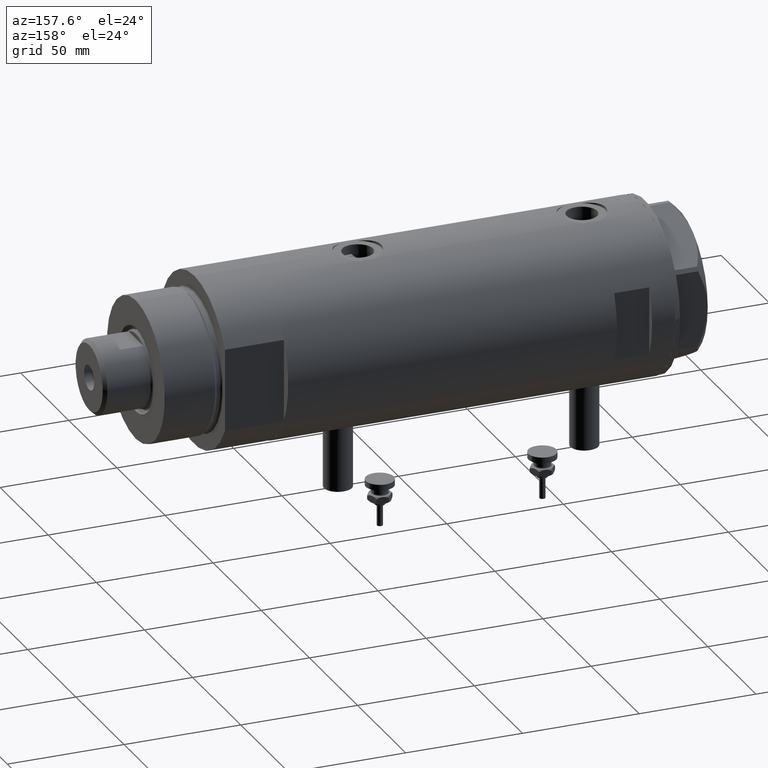
[diagram: clean part render]
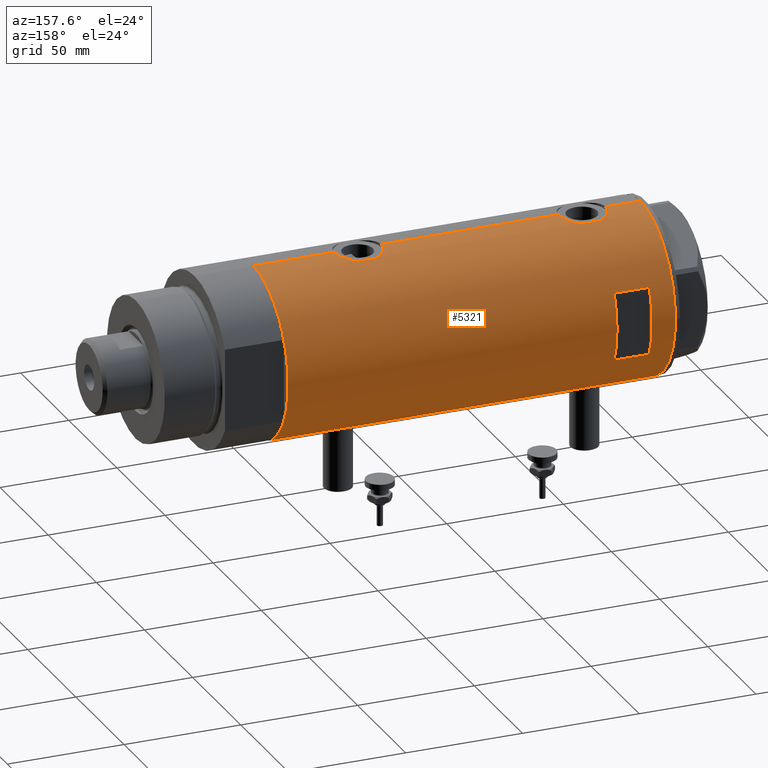
[diagram: same view with one face highlighted and labeled with its STEP entity id]
A machine part, auxiliary view. The second image highlights one B-rep face of the part: STEP entity #5321.
In plain terms, the highlighted cylindrical surface (partial cylindrical patch) has radius 36.5 mm, axis along (-1, -0, 0).
Its self-contained STEP definition (entity closure, byte-faithful):
#26 = CARTESIAN_POINT ( 'NONE',  ( -35.96094343308264740, 6.249843792257639308, -46.18912889655430121 ) ) ;
#29 = CARTESIAN_POINT ( 'NONE',  ( 36.44688397185922213, 1.983417953489136965, 67.70449957648254724 ) ) ;
#90 = FACE_OUTER_BOUND ( 'NONE', #4824, .T. ) ;
#93 = CARTESIAN_POINT ( 'NONE',  ( -36.36688032967139605, 3.133094607697487266, -41.17663567362491506 ) ) ;
#108 = DIRECTION ( 'NONE',  ( 0.000000000000000000, 0.000000000000000000, 1.000000000000000000 ) ) ;
#117 = CARTESIAN_POINT ( 'NONE',  ( -36.01679413914727235, 5.919813138266332153, -44.58500308952962143 ) ) ;
#121 = CARTESIAN_POINT ( 'NONE',  ( 0.000000000000000000, 0.000000000000000000, -82.90000000000000568 ) ) ;
#122 = VERTEX_POINT ( 'NONE', #3693 ) ;
#136 = ORIENTED_EDGE ( 'NONE', *, *, #2375, .F. ) ;
#145 = CARTESIAN_POINT ( 'NONE',  ( 36.40008489419981430, 2.709263960908035784, 67.52918104596393789 ) ) ;
#146 = CARTESIAN_POINT ( 'NONE',  ( 36.18937351723702989, 4.773052864917642246, -29.29864006881156513 ) ) ;
#163 = VERTEX_POINT ( 'NONE', #704 ) ;
#181 = ORIENTED_EDGE ( 'NONE', *, *, #5621, .F. ) ;
#184 = CARTESIAN_POINT ( 'NONE',  ( -36.16126303108062956, 4.966520032693292563, 62.71641227745282521 ) ) ;
#211 = CARTESIAN_POINT ( 'NONE',  ( -36.30200038006935159, 3.811959488093736415, 63.86972104836005570 ) ) ;
#217 = CARTESIAN_POINT ( 'NONE',  ( 14.49137674618942739, 33.50000000000000000, 72.89999999999999147 ) ) ;
#244 = CARTESIAN_POINT ( 'NONE',  ( -35.96793274302675769, 6.210029014836877970, 59.71694237679319173 ) ) ;
#270 = AXIS2_PLACEMENT_3D ( 'NONE', #121, #550, #4199 ) ;
#281 = CARTESIAN_POINT ( 'NONE',  ( -36.50000000000000000, 0.4137727629436733778, 65.15000000000000568 ) ) ;
#298 = CARTESIAN_POINT ( 'NONE',  ( 36.13018480315371761, 5.199168368309162958, -46.65646498208050730 ) ) ;
#339 = CIRCLE ( 'NONE', #1395, 36.50000000000000000 ) ;
#475 = DIRECTION ( 'NONE',  ( 0.000000000000000000, 0.000000000000000000, 1.000000000000000000 ) ) ;
#549 = EDGE_CURVE ( 'NONE', #163, #1470, #4984, .T. ) ;
#550 = DIRECTION ( 'NONE',  ( 0.000000000000000000, 0.000000000000000000, 1.000000000000000000 ) ) ;
#572 = CARTESIAN_POINT ( 'NONE',  ( 36.48988646280793802, 0.9921857666168150125, 67.86328115134426753 ) ) ;
#583 = LINE ( 'NONE', #2427, #1102 ) ;
#652 = AXIS2_PLACEMENT_3D ( 'NONE', #5343, #4370, #3068 ) ;
#654 = EDGE_CURVE ( 'NONE', #991, #3566, #5064, .T. ) ;
#657 = CARTESIAN_POINT ( 'NONE',  ( 36.45954139109321090, 1.735915671103594571, -28.24863218852990698 ) ) ;
#680 = EDGE_CURVE ( 'NONE', #3439, #5836, #4505, .T. ) ;
#682 = CARTESIAN_POINT ( 'NONE',  ( 36.29611582693038940, 3.878758190381168092, -28.86955010900449992 ) ) ;
#691 = CARTESIAN_POINT ( 'NONE',  ( -36.44504802628534890, 2.011764947064734077, 64.82093644908518115 ) ) ;
#704 = CARTESIAN_POINT ( 'NONE',  ( 36.50000000000000000, 0.000000000000000000, -82.90000000000000568 ) ) ;
#770 = CARTESIAN_POINT ( 'NONE',  ( -36.46462099658055678, 1.618684470865503489, 64.94024397024845996 ) ) ;
#800 = CARTESIAN_POINT ( 'NONE',  ( -36.50000000000000000, 4.469960816887838430E-15, -82.90000000000000568 ) ) ;
#906 = CARTESIAN_POINT ( 'NONE',  ( -36.39638105034455151, 2.774378062517180332, -40.98456667300897749 ) ) ;
#914 = VECTOR ( 'NONE', #3320, 1000.000000000000000 ) ;
#922 = EDGE_CURVE ( 'NONE', #3594, #3439, #3365, .T. ) ;
#937 = ORIENTED_EDGE ( 'NONE', *, *, #3167, .T. ) ;
#942 = CARTESIAN_POINT ( 'NONE',  ( -36.16126303108063667, 4.966520032693304998, -42.78358772254716058 ) ) ;
#943 = CARTESIAN_POINT ( 'NONE',  ( 35.83170458557579963, 6.955065627744201784, 65.08941671912468507 ) ) ;
#954 = ORIENTED_EDGE ( 'NONE', *, *, #2806, .F. ) ;
#973 = CARTESIAN_POINT ( 'NONE',  ( -36.16083474549354548, 4.969527450313382388, -50.41205319122751405 ) ) ;
#981 = VERTEX_POINT ( 'NONE', #3453 ) ;
#991 = VERTEX_POINT ( 'NONE', #2920 ) ;
#1031 = CARTESIAN_POINT ( 'NONE',  ( -36.19597718496778782, 4.710322426433910081, -50.72851610762017316 ) ) ;
#1046 = CARTESIAN_POINT ( 'NONE',  ( 0.000000000000000000, 0.000000000000000000, 57.90000000000014779 ) ) ;
#1102 = VECTOR ( 'NONE', #1961, 1000.000000000000000 ) ;
#1151 = CARTESIAN_POINT ( 'NONE',  ( 35.29999999999999716, 9.282241108697837362, -34.37978495245235422 ) ) ;
#1158 = CARTESIAN_POINT ( 'NONE',  ( -36.01679413914727235, 5.919813138266318830, 60.91499691047037146 ) ) ;
#1188 = CARTESIAN_POINT ( 'NONE',  ( -36.06690560274405044, 5.606949625760669242, 56.13114076041065914 ) ) ;
#1210 = CARTESIAN_POINT ( 'NONE',  ( 36.50000000000000000, 4.344604608721388599E-19, 67.90000000000000568 ) ) ;
#1218 = CARTESIAN_POINT ( 'NONE',  ( -36.01524716445113228, 5.931039972055507370, 56.88669268135342350 ) ) ;
#1229 = CARTESIAN_POINT ( 'NONE',  ( 35.79766710091576698, 7.135341284989892507, 50.87649479439096467 ) ) ;
#1239 = ORIENTED_EDGE ( 'NONE', *, *, #4422, .F. ) ;
#1244 = VECTOR ( 'NONE', #3077, 1000.000000000000000 ) ;
#1281 = CARTESIAN_POINT ( 'NONE',  ( -36.50000000000000000, 4.469960493369248271E-15, 52.65000000000001279 ) ) ;
#1297 = CARTESIAN_POINT ( 'NONE',  ( 36.00287854058830561, 6.017835360303004144, -46.10188117181726142 ) ) ;
#1325 = LINE ( 'NONE', #2301, #5264 ) ;
#1369 = CARTESIAN_POINT ( 'NONE',  ( 36.50000000000000000, 0.000000000000000000, -48.10000000000000142 ) ) ;
#1395 = AXIS2_PLACEMENT_3D ( 'NONE', #3764, #2382, #4229 ) ;
#1398 = ORIENTED_EDGE ( 'NONE', *, *, #4514, .F. ) ;
#1404 = CARTESIAN_POINT ( 'NONE',  ( 35.29999999999999716, 9.282241108697837362, 61.62021504754764578 ) ) ;
#1414 = ORIENTED_EDGE ( 'NONE', *, *, #1693, .F. ) ;
#1425 = CARTESIAN_POINT ( 'NONE',  ( 36.45954139109321801, 1.735915671103596125, 67.75136781147011789 ) ) ;
#1447 = VERTEX_POINT ( 'NONE', #2522 ) ;
#1451 = CARTESIAN_POINT ( 'NONE',  ( -36.35033317675381426, 3.306376218664579536, -51.90770719416052970 ) ) ;
#1470 = VERTEX_POINT ( 'NONE', #1758 ) ;
#1474 = CARTESIAN_POINT ( 'NONE',  ( -36.40902375114222167, 2.582415566883932811, -52.29521691469690836 ) ) ;
#1475 = CARTESIAN_POINT ( 'NONE',  ( 36.41717583764487642, 2.469534783404759182, 67.59348011175673321 ) ) ;
#1500 = VERTEX_POINT ( 'NONE', #4487 ) ;
#1523 = DIRECTION ( 'NONE',  ( 0.000000000000000000, 1.000000000000000000, -4.562560375171875891E-15 ) ) ;
#1531 = LINE ( 'NONE', #2793, #914 ) ;
#1578 = CARTESIAN_POINT ( 'NONE',  ( 35.29999999999999716, 9.282241108697837362, -34.37978495245235422 ) ) ;
#1594 = VECTOR ( 'NONE', #2868, 1000.000000000000000 ) ;
#1605 = CARTESIAN_POINT ( 'NONE',  ( -36.26643311080165688, 4.132772529026629726, 63.60619405269881099 ) ) ;
#1635 = CARTESIAN_POINT ( 'NONE',  ( -35.96805604460922012, 6.209309709790225007, 58.07887241731829420 ) ) ;
#1643 = CARTESIAN_POINT ( 'NONE',  ( 35.52737867031126484, 8.373910777960910323, 52.41139643282934202 ) ) ;
#1693 = EDGE_CURVE ( 'NONE', #981, #1923, #4976, .T. ) ;
#1713 = CARTESIAN_POINT ( 'NONE',  ( 35.72860827204725354, 7.471059959301286746, -44.76525150474409998 ) ) ;
#1729 = CARTESIAN_POINT ( 'NONE',  ( -36.36587679577596077, 3.131448301962862057, 53.48717534426381803 ) ) ;
#1758 = CARTESIAN_POINT ( 'NONE',  ( -36.50000000000000000, 4.469960816887838430E-15, -82.90000000000000568 ) ) ;
#1765 = CARTESIAN_POINT ( 'NONE',  ( 36.50000000000000000, 0.000000000000000000, -48.10000000000000142 ) ) ;
#1808 = DIRECTION ( 'NONE',  ( 0.000000000000000000, 0.000000000000000000, 1.000000000000000000 ) ) ;
#1862 = CARTESIAN_POINT ( 'NONE',  ( -35.96805604460922012, 6.209309709790239218, -47.42112758268170580 ) ) ;
#1863 = CARTESIAN_POINT ( 'NONE',  ( 36.34264078466109993, 3.418717136061407480, 67.31049034040752588 ) ) ;
#1890 = FACE_BOUND ( 'NONE', #3787, .T. ) ;
#1898 = VERTEX_POINT ( 'NONE', #1369 ) ;
#1912 = CARTESIAN_POINT ( 'NONE',  ( 36.50000000000000000, 0.000000000000000000, -82.90000000000000568 ) ) ;
#1920 = DIRECTION ( 'NONE',  ( 1.000000000000000000, 0.000000000000000000, 0.000000000000000000 ) ) ;
#1923 = VERTEX_POINT ( 'NONE', #3989 ) ;
#1924 = CARTESIAN_POINT ( 'NONE',  ( -36.39522946636255085, 2.769519034821246617, -52.20663923731272860 ) ) ;
#1925 = CARTESIAN_POINT ( 'NONE',  ( 36.12877841835537396, 5.208882251161923271, 66.45053164790293465 ) ) ;
#1961 = DIRECTION ( 'NONE',  ( 0.000000000000000000, 0.000000000000000000, 1.000000000000000000 ) ) ;
#1974 = VECTOR ( 'NONE', #108, 1000.000000000000000 ) ;
#1983 = CARTESIAN_POINT ( 'NONE',  ( 36.41717583764485511, 2.469534783404757405, -28.40651988824328456 ) ) ;
#2008 = CARTESIAN_POINT ( 'NONE',  ( 35.29999999999999716, 9.282241108697837362, -82.90000000000000568 ) ) ;
#2026 = CARTESIAN_POINT ( 'NONE',  ( 36.50000000000000000, 0.000000000000000000, 82.90000000000000568 ) ) ;
#2039 = CARTESIAN_POINT ( 'NONE',  ( -36.50000000000000000, 7.463603853851042361E-16, -40.34999999999999432 ) ) ;
#2042 = CARTESIAN_POINT ( 'NONE',  ( 36.48988646280794512, 0.9921857666168116818, -28.13671884865573602 ) ) ;
#2056 = CARTESIAN_POINT ( 'NONE',  ( 36.50000000000000000, 0.000000000000000000, 47.89999999999999858 ) ) ;
#2067 = VECTOR ( 'NONE', #4923, 1000.000000000000000 ) ;
#2079 = CARTESIAN_POINT ( 'NONE',  ( -35.96088929326158734, 6.250155299092678085, 58.49389505236757003 ) ) ;
#2088 = CARTESIAN_POINT ( 'NONE',  ( 35.93456089024233790, 6.410413305453381838, 50.20914036795854685 ) ) ;
#2098 = CARTESIAN_POINT ( 'NONE',  ( 36.49999999999999289, 1.005842003469123558, -48.09999999999999432 ) ) ;
#2099 = CARTESIAN_POINT ( 'NONE',  ( 36.50000000000000000, 0.000000000000000000, -82.90000000000000568 ) ) ;
#2107 = VERTEX_POINT ( 'NONE', #1578 ) ;
#2116 = LINE ( 'NONE', #800, #3757 ) ;
#2147 = CARTESIAN_POINT ( 'NONE',  ( 36.50000000000000000, 4.344604608721388599E-19, 67.90000000000000568 ) ) ;
#2189 = CARTESIAN_POINT ( 'NONE',  ( 35.59366931936805400, 8.089554397885871495, -43.99927319087814936 ) ) ;
#2218 = VERTEX_POINT ( 'NONE', #217 ) ;
#2301 = CARTESIAN_POINT ( 'NONE',  ( -36.50000000000000000, 4.469960816887838430E-15, -82.90000000000000568 ) ) ;
#2311 = CARTESIAN_POINT ( 'NONE',  ( -36.49297130294515057, 0.8204796224394304005, -40.39068307782265066 ) ) ;
#2312 = CARTESIAN_POINT ( 'NONE',  ( 35.93435287561198521, 6.411571491280764867, 65.58988644922843037 ) ) ;
#2328 = CYLINDRICAL_SURFACE ( 'NONE', #2915, 36.50000000000000000 ) ;
#2366 = CARTESIAN_POINT ( 'NONE',  ( -36.19624103943463211, 4.708090268046854376, -42.46938778553861482 ) ) ;
#2367 = CARTESIAN_POINT ( 'NONE',  ( 35.52347503888662317, 8.410566959990465108, 63.39953967259342704 ) ) ;
#2375 = EDGE_CURVE ( 'NONE', #2107, #5151, #4090, .T. ) ;
#2382 = DIRECTION ( 'NONE',  ( -0.000000000000000000, -0.000000000000000000, -1.000000000000000000 ) ) ;
#2394 = CARTESIAN_POINT ( 'NONE',  ( -36.09617453667819831, 5.415318599347969553, -43.47293357327087193 ) ) ;
#2417 = CARTESIAN_POINT ( 'NONE',  ( -36.50000000000000000, 4.469960493366092827E-15, -52.85000000000000853 ) ) ;
#2418 = CARTESIAN_POINT ( 'NONE',  ( 35.29999999999999716, 9.282241108697837362, 61.62021504754764578 ) ) ;
#2419 = CARTESIAN_POINT ( 'NONE',  ( 36.50000000000000000, 4.344611676915099379E-19, -28.10000000000000142 ) ) ;
#2427 = CARTESIAN_POINT ( 'NONE',  ( -36.50000000000000000, 4.469960816887838430E-15, -82.90000000000000568 ) ) ;
#2450 = CARTESIAN_POINT ( 'NONE',  ( 35.69321149401852011, 7.633476302278306314, -31.63536927833558110 ) ) ;
#2519 = CARTESIAN_POINT ( 'NONE',  ( 36.36225053217121683, 3.177096004138048713, 48.41483975524019456 ) ) ;
#2522 = CARTESIAN_POINT ( 'NONE',  ( 36.50000000000000000, 0.000000000000000000, 47.89999999999999858 ) ) ;
#2529 = LINE ( 'NONE', #2099, #4391 ) ;
#2546 = CARTESIAN_POINT ( 'NONE',  ( -36.19597718496778072, 4.710322426433902088, 54.77148389237986237 ) ) ;
#2557 = CARTESIAN_POINT ( 'NONE',  ( 35.72860827204725354, 7.471059959301286746, 51.23474849525592134 ) ) ;
#2586 = CARTESIAN_POINT ( 'NONE',  ( -36.16083474549355259, 4.969527450313370842, 55.08794680877250016 ) ) ;
#2627 = CARTESIAN_POINT ( 'NONE',  ( 36.34070350304396868, 3.414301401755547083, -47.50236217375907444 ) ) ;
#2753 = CARTESIAN_POINT ( 'NONE',  ( -35.98846897517729815, 6.089479646546508640, -45.17765108453480849 ) ) ;
#2754 = CARTESIAN_POINT ( 'NONE',  ( 36.18937351723702989, 4.773052864917642246, 66.70135993118843487 ) ) ;
#2776 = CARTESIAN_POINT ( 'NONE',  ( -36.26695135241004664, 4.128455078791307464, -51.31037591644739848 ) ) ;
#2793 = CARTESIAN_POINT ( 'NONE',  ( 35.29999999999999716, 9.282241108697837362, -82.90000000000000568 ) ) ;
#2803 = CARTESIAN_POINT ( 'NONE',  ( 35.39804469700246869, 8.909380959553008239, 62.55053164482843187 ) ) ;
#2806 = EDGE_CURVE ( 'NONE', #1923, #1500, #5167, .T. ) ;
#2842 = CARTESIAN_POINT ( 'NONE',  ( -36.06690560274405044, 5.606949625760679901, -49.36885923958933375 ) ) ;
#2868 = DIRECTION ( 'NONE',  ( -0.000000000000000000, -0.000000000000000000, -1.000000000000000000 ) ) ;
#2915 = AXIS2_PLACEMENT_3D ( 'NONE', #3179, #1808, #1920 ) ;
#2920 = CARTESIAN_POINT ( 'NONE',  ( -36.50000000000000000, 2.196845629780489385E-16, 65.15000000000000568 ) ) ;
#2922 = CARTESIAN_POINT ( 'NONE',  ( 36.34264078466111414, 3.418717136061404815, -28.68950965959248123 ) ) ;
#2939 = CIRCLE ( 'NONE', #652, 36.50000000000000000 ) ;
#2947 = CARTESIAN_POINT ( 'NONE',  ( -14.49137674618942739, 33.50000000000000000, -82.90000000000000568 ) ) ;
#2958 = LINE ( 'NONE', #1912, #1974 ) ;
#2965 = CARTESIAN_POINT ( 'NONE',  ( 36.45853166336078743, 1.985123042546143690, 48.04837329582261418 ) ) ;
#2971 = CARTESIAN_POINT ( 'NONE',  ( 36.29420020483470921, 3.877527130731371230, -47.32098974400295077 ) ) ;
#2977 = EDGE_CURVE ( 'NONE', #163, #1898, #2529, .T. ) ;
#2980 = ORIENTED_EDGE ( 'NONE', *, *, #2984, .F. ) ;
#2984 = EDGE_CURVE ( 'NONE', #5836, #122, #2939, .T. ) ;
#2985 = CARTESIAN_POINT ( 'NONE',  ( -36.09643313249889474, 5.413601294342269554, 55.76992226608147973 ) ) ;
#3019 = CARTESIAN_POINT ( 'NONE',  ( -36.35033317675380715, 3.306376218664574207, 53.59229280583950583 ) ) ;
#3028 = ORIENTED_EDGE ( 'NONE', *, *, #2977, .F. ) ;
#3057 = CARTESIAN_POINT ( 'NONE',  ( 35.40502660484482789, 8.876998817796915020, 53.26901275928763368 ) ) ;
#3068 = DIRECTION ( 'NONE',  ( 1.000000000000000000, 0.000000000000000000, 0.000000000000000000 ) ) ;
#3077 = DIRECTION ( 'NONE',  ( 0.000000000000000000, 0.000000000000000000, 1.000000000000000000 ) ) ;
#3160 = CARTESIAN_POINT ( 'NONE',  ( 35.29999999999999716, 9.282241108697837362, 54.17978495245235138 ) ) ;
#3167 = EDGE_CURVE ( 'NONE', #5128, #3566, #1325, .T. ) ;
#3179 = CARTESIAN_POINT ( 'NONE',  ( 0.000000000000000000, 0.000000000000000000, -82.90000000000000568 ) ) ;
#3184 = CARTESIAN_POINT ( 'NONE',  ( -36.50000000000000000, 0.4137727629436737109, -40.35000000000000142 ) ) ;
#3216 = CARTESIAN_POINT ( 'NONE',  ( -36.05296344941215381, 5.695624845616832133, -49.18154856536755659 ) ) ;
#3217 = CARTESIAN_POINT ( 'NONE',  ( 36.49999999999999289, 0.4961820988516169595, 67.89999999999997726 ) ) ;
#3320 = DIRECTION ( 'NONE',  ( -0.000000000000000000, -0.000000000000000000, -1.000000000000000000 ) ) ;
#3327 = LINE ( 'NONE', #2008, #1594 ) ;
#3337 = EDGE_CURVE ( 'NONE', #2107, #4623, #1531, .T. ) ;
#3352 = CARTESIAN_POINT ( 'NONE',  ( 35.72794581931695035, 7.469526493268208611, -31.44660203271737586 ) ) ;
#3365 = B_SPLINE_CURVE_WITH_KNOTS ( 'NONE', 3,
 ( #2418, #2803, #2367, #5058, #5531, #4191, #943, #2312, #4682, #1925, #2754, #4247, #1863, #145, #1475, #29, #1425, #572, #3217, #1210 ),
 .UNSPECIFIED., .F., .F.,
 ( 4, 2, 2, 2, 2, 2, 2, 2, 2, 4 ),
 ( 0.000000000000000000, 0.002977391289382842147, 0.003721739111728546070, 0.004466086934074248692, 0.005954782578765684294, 0.007443478223457119895, 0.008932173868148556364, 0.009676521690494280237, 0.01042086951284000584, 0.01190956515753144838 ),
 .UNSPECIFIED. ) ;
#3389 = CARTESIAN_POINT ( 'NONE',  ( 35.83170458557578542, 6.955065627744200007, -30.91058328087535401 ) ) ;
#3397 = CARTESIAN_POINT ( 'NONE',  ( -36.19624103943462501, 4.708090268046841942, 63.03061221446136386 ) ) ;
#3434 = CARTESIAN_POINT ( 'NONE',  ( -35.99530513653992614, 6.049346314076198716, 57.27667416964168012 ) ) ;
#3439 = VERTEX_POINT ( 'NONE', #2147 ) ;
#3441 = CARTESIAN_POINT ( 'NONE',  ( 36.29420020483470921, 3.877527130731371230, 48.67901025599706344 ) ) ;
#3444 = B_SPLINE_CURVE_WITH_KNOTS ( 'NONE', 3,
 ( #5025, #3184, #2311, #5140, #5941, #4100, #3627, #906, #93, #4681, #5057, #2366, #942, #5593, #2394, #5500, #4190, #117, #5111, #2753, #4592, #26, #4125, #1862, #3658, #3722, #3216, #2842, #5086, #4217, #973, #1031, #2776, #4620, #1451, #4646, #1924, #1474, #4708, #3839, #4284, #5673, #2417 ),
 .UNSPECIFIED., .F., .F.,
 ( 4, 2, 2, 2, 2, 2, 2, 2, 1, 2, 2, 2, 2, 2, 2, 2, 2, 2, 2, 2, 2, 4 ),
 ( 7.251201204191552072E-19, 0.001223527801214152827, 0.001835291701821226964, 0.002447055602428301752, 0.003670583403642443086, 0.004894111204856584421, 0.006117639006070725756, 0.006729402906677795122, 0.007341166807284864489, 0.007952930707891932988, 0.008564694608499004089, 0.009788222409713161903, 0.01101175021092732145, 0.01223527801214148100, 0.01284704191274855904, 0.01345880581335564055, 0.01468233361456980184, 0.01590586141578396312, 0.01651762531639104289, 0.01712938921699812267, 0.01835291701821228222, 0.01957644481942644524 ),
 .UNSPECIFIED. ) ;
#3446 = CARTESIAN_POINT ( 'NONE',  ( 35.79766710091576698, 7.135341284989892507, -45.12350520560902822 ) ) ;
#3453 = CARTESIAN_POINT ( 'NONE',  ( 14.49137674618942917, 33.50000000000000000, 57.89999999999999147 ) ) ;
#3460 = CARTESIAN_POINT ( 'NONE',  ( -36.06675137892952421, 5.607935153446965693, 61.66681826008759515 ) ) ;
#3469 = CARTESIAN_POINT ( 'NONE',  ( 36.13018480315371761, 5.199168368309162958, 49.34353501791949981 ) ) ;
#3508 = VECTOR ( 'NONE', #4304, 1000.000000000000000 ) ;
#3514 = ORIENTED_EDGE ( 'NONE', *, *, #3337, .T. ) ;
#3524 = CARTESIAN_POINT ( 'NONE',  ( -36.40902375114222167, 2.582415566883931479, 53.20478308530312006 ) ) ;
#3561 = CARTESIAN_POINT ( 'NONE',  ( 36.36225053217121683, 3.177096004138048713, -47.58516024475981965 ) ) ;
#3566 = VERTEX_POINT ( 'NONE', #5012 ) ;
#3594 = VERTEX_POINT ( 'NONE', #1404 ) ;
#3596 = ORIENTED_EDGE ( 'NONE', *, *, #4761, .F. ) ;
#3627 = CARTESIAN_POINT ( 'NONE',  ( -36.43371204571226940, 2.206934156026296723, -40.74902718329001772 ) ) ;
#3658 = CARTESIAN_POINT ( 'NONE',  ( -35.99530513653993324, 6.049346314076213815, -48.22332583035833409 ) ) ;
#3693 = CARTESIAN_POINT ( 'NONE',  ( -36.50000000000000000, 4.469960816887838430E-15, 82.90000000000000568 ) ) ;
#3710 = CARTESIAN_POINT ( 'NONE',  ( -36.50000000000000000, 4.469960493366092827E-15, -52.85000000000000853 ) ) ;
#3722 = CARTESIAN_POINT ( 'NONE',  ( -36.01524716445113938, 5.931039972055519804, -48.61330731864658361 ) ) ;
#3743 = EDGE_CURVE ( 'NONE', #991, #122, #583, .T. ) ;
#3757 = VECTOR ( 'NONE', #5779, 1000.000000000000000 ) ;
#3764 = CARTESIAN_POINT ( 'NONE',  ( 0.000000000000000000, 0.000000000000000000, 72.89999999999999147 ) ) ;
#3772 = EDGE_CURVE ( 'NONE', #1500, #2218, #339, .T. ) ;
#3787 = EDGE_LOOP ( 'NONE', ( #954, #1414, #1398, #3817 ) ) ;
#3813 = CARTESIAN_POINT ( 'NONE',  ( 36.12877841835538106, 5.208882251161926824, -29.54946835209708667 ) ) ;
#3817 = ORIENTED_EDGE ( 'NONE', *, *, #3772, .F. ) ;
#3839 = CARTESIAN_POINT ( 'NONE',  ( -36.46598788992681506, 1.625721481788706013, -52.64872046713838216 ) ) ;
#3861 = CARTESIAN_POINT ( 'NONE',  ( 35.59366931936805400, 8.089554397885871495, 52.00072680912185774 ) ) ;
#3880 = CARTESIAN_POINT ( 'NONE',  ( 36.50000000000000000, 0.4961820988516186803, -28.10000000000000142 ) ) ;
#3888 = CARTESIAN_POINT ( 'NONE',  ( -36.49297130294515057, 0.8204796224394267368, 65.10931692217734224 ) ) ;
#3919 = CARTESIAN_POINT ( 'NONE',  ( -36.50000000000000000, 2.196845629780489385E-16, 65.15000000000000568 ) ) ;
#3935 = CARTESIAN_POINT ( 'NONE',  ( 35.40502660484482789, 8.876998817796915020, -42.73098724071236632 ) ) ;
#3948 = CARTESIAN_POINT ( 'NONE',  ( -36.43371204571226230, 2.206934156026284732, 64.75097281670994676 ) ) ;
#3989 = CARTESIAN_POINT ( 'NONE',  ( -14.49137674618942917, 33.50000000000000000, 57.89999999999999147 ) ) ;
#4003 = CARTESIAN_POINT ( 'NONE',  ( 36.45853166336078743, 1.985123042546143690, -47.95162670417735740 ) ) ;
#4008 = CARTESIAN_POINT ( 'NONE',  ( 36.50000000000000000, 4.344611676915099379E-19, -28.10000000000000142 ) ) ;
#4054 = EDGE_CURVE ( 'NONE', #1470, #5824, #2116, .T. ) ;
#4090 = B_SPLINE_CURVE_WITH_KNOTS ( 'NONE', 3,
 ( #1151, #5626, #5261, #2450, #3352, #4219, #3389, #4286, #4776, #3813, #146, #682, #2922, #5675, #1983, #4312, #657, #2042, #3880, #2419 ),
 .UNSPECIFIED., .F., .F.,
 ( 4, 2, 2, 2, 2, 2, 2, 2, 2, 4 ),
 ( 0.000000000000000000, 0.002977391289382820029, 0.003721739111728531758, 0.004466086934074251294, 0.005954782578765692100, 0.007443478223457132038, 0.008932173868148571977, 0.009676521690494288910, 0.01042086951284000758, 0.01190956515753144491 ),
 .UNSPECIFIED. ) ;
#4100 = CARTESIAN_POINT ( 'NONE',  ( -36.44504802628535600, 2.011764947064739406, -40.67906355091481174 ) ) ;
#4125 = CARTESIAN_POINT ( 'NONE',  ( -35.96088929326157313, 6.250155299092693184, -47.00610494763245129 ) ) ;
#4190 = CARTESIAN_POINT ( 'NONE',  ( -36.03936508729894683, 5.782103729777510637, -44.20129467396203893 ) ) ;
#4191 = CARTESIAN_POINT ( 'NONE',  ( 35.79715675463678082, 7.130463293899336641, 64.91555584105995536 ) ) ;
#4199 = DIRECTION ( 'NONE',  ( 1.000000000000000000, 0.000000000000000000, 0.000000000000000000 ) ) ;
#4217 = CARTESIAN_POINT ( 'NONE',  ( -36.11206433103227198, 5.308658295084047296, -49.90484648040978755 ) ) ;
#4219 = CARTESIAN_POINT ( 'NONE',  ( 35.79715675463676661, 7.130463293899343746, -31.08444415894004109 ) ) ;
#4229 = DIRECTION ( 'NONE',  ( 1.000000000000000000, 1.776356839400250465E-15, 0.000000000000000000 ) ) ;
#4247 = CARTESIAN_POINT ( 'NONE',  ( 36.29611582693039651, 3.878758190381167648, 67.13044989099549298 ) ) ;
#4249 = ORIENTED_EDGE ( 'NONE', *, *, #4975, .F. ) ;
#4284 = CARTESIAN_POINT ( 'NONE',  ( -36.49292802938587243, 0.8230716655928884684, -52.80906938753516044 ) ) ;
#4286 = CARTESIAN_POINT ( 'NONE',  ( 35.93435287561198521, 6.411571491280768420, -30.41011355077158029 ) ) ;
#4290 = CARTESIAN_POINT ( 'NONE',  ( -36.36688032967139605, 3.133094607697478828, 64.32336432637509915 ) ) ;
#4304 = DIRECTION ( 'NONE',  ( 0.000000000000000000, 0.000000000000000000, 1.000000000000000000 ) ) ;
#4312 = CARTESIAN_POINT ( 'NONE',  ( 36.44688397185921502, 1.983417953489134744, -28.29550042351748829 ) ) ;
#4370 = DIRECTION ( 'NONE',  ( 0.000000000000000000, 0.000000000000000000, 1.000000000000000000 ) ) ;
#4384 = CARTESIAN_POINT ( 'NONE',  ( -36.30181775639987762, 3.813582387016778430, 53.93163942425564983 ) ) ;
#4390 = ORIENTED_EDGE ( 'NONE', *, *, #680, .F. ) ;
#4391 = VECTOR ( 'NONE', #4926, 1000.000000000000000 ) ;
#4393 = CARTESIAN_POINT ( 'NONE',  ( 35.34894515018993388, 9.096104616284849342, 53.71535916533458987 ) ) ;
#4417 = CARTESIAN_POINT ( 'NONE',  ( -36.03936508729894683, 5.782103729777503531, 61.29870532603795397 ) ) ;
#4422 = EDGE_CURVE ( 'NONE', #1447, #4972, #4617, .T. ) ;
#4442 = CARTESIAN_POINT ( 'NONE',  ( -36.39522946636254375, 2.769519034821240844, 53.29336076268729272 ) ) ;
#4458 = CARTESIAN_POINT ( 'NONE',  ( 35.34894515018993388, 9.096104616284849342, -42.28464083466543144 ) ) ;
#4482 = ORIENTED_EDGE ( 'NONE', *, *, #3743, .T. ) ;
#4487 = CARTESIAN_POINT ( 'NONE',  ( -14.49137674618942739, 33.50000000000000000, 72.89999999999999147 ) ) ;
#4505 = LINE ( 'NONE', #4528, #1244 ) ;
#4514 = EDGE_CURVE ( 'NONE', #2218, #981, #4819, .T. ) ;
#4528 = CARTESIAN_POINT ( 'NONE',  ( 36.50000000000000000, 0.000000000000000000, -82.90000000000000568 ) ) ;
#4592 = CARTESIAN_POINT ( 'NONE',  ( -35.96793274302673638, 6.210029014836893069, -45.78305762320682248 ) ) ;
#4617 = B_SPLINE_CURVE_WITH_KNOTS ( 'NONE', 3,
 ( #2056, #5813, #2965, #2519, #5783, #3441, #4815, #5368, #3469, #5755, #2088, #1229, #2557, #3861, #1643, #3057, #4393, #4915 ),
 .UNSPECIFIED., .F., .F.,
 ( 4, 2, 2, 2, 2, 2, 2, 2, 4 ),
 ( 6.505213034913026604E-19, 0.002973648994175712851, 0.003717061242719640196, 0.004460473491263567541, 0.005947297988351423099, 0.007434122485439277790, 0.008920946982527131613, 0.01040777147961498630, 0.01189459597670284099 ),
 .UNSPECIFIED. ) ;
#4620 = CARTESIAN_POINT ( 'NONE',  ( -36.30181775639988473, 3.813582387016784203, -51.56836057574439280 ) ) ;
#4623 = VERTEX_POINT ( 'NONE', #5427 ) ;
#4646 = CARTESIAN_POINT ( 'NONE',  ( -36.36587679577596077, 3.131448301962866054, -52.01282465573622460 ) ) ;
#4661 = B_SPLINE_CURVE_WITH_KNOTS ( 'NONE', 3,
 ( #1765, #2098, #4003, #3561, #2627, #2971, #5761, #5822, #298, #1297, #4959, #3446, #1713, #2189, #5374, #3935, #4458, #4859 ),
 .UNSPECIFIED., .F., .F.,
 ( 4, 2, 2, 2, 2, 2, 2, 2, 4 ),
 ( 6.505213034913026604E-19, 0.002973648994175712851, 0.003717061242719640196, 0.004460473491263567541, 0.005947297988351423099, 0.007434122485439277790, 0.008920946982527131613, 0.01040777147961498630, 0.01189459597670284099 ),
 .UNSPECIFIED. ) ;
#4681 = CARTESIAN_POINT ( 'NONE',  ( -36.30200038006934449, 3.811959488093747961, -41.63027895163993009 ) ) ;
#4682 = CARTESIAN_POINT ( 'NONE',  ( 36.00145998247697321, 6.026272765084660143, 65.89550388212386167 ) ) ;
#4708 = CARTESIAN_POINT ( 'NONE',  ( -36.44628644024910358, 2.015372769639944828, -52.53028128013585984 ) ) ;
#4744 = CARTESIAN_POINT ( 'NONE',  ( -35.99700617875953412, 6.038972911021577517, 60.52333185798319448 ) ) ;
#4761 = EDGE_CURVE ( 'NONE', #5151, #1447, #2958, .T. ) ;
#4776 = CARTESIAN_POINT ( 'NONE',  ( 36.00145998247696610, 6.026272765084661920, -30.10449611787613478 ) ) ;
#4807 = CARTESIAN_POINT ( 'NONE',  ( -35.98846897517730525, 6.089479646546494429, 60.32234891546520572 ) ) ;
#4812 = ORIENTED_EDGE ( 'NONE', *, *, #4054, .T. ) ;
#4815 = CARTESIAN_POINT ( 'NONE',  ( 36.26917563968162739, 4.104523505324179311, 48.77784011632527239 ) ) ;
#4819 = LINE ( 'NONE', #5373, #2067 ) ;
#4824 = EDGE_LOOP ( 'NONE', ( #5903, #4812, #4249, #937, #5508, #4482, #2980, #4390, #5901, #5384, #1239, #3596, #136, #3514, #181, #3028 ) ) ;
#4838 = CARTESIAN_POINT ( 'NONE',  ( -36.11206433103227909, 5.308658295084034862, 55.59515351959023377 ) ) ;
#4859 = CARTESIAN_POINT ( 'NONE',  ( 35.29999999999999716, 9.282241108697837362, -41.82021504754764862 ) ) ;
#4908 = CARTESIAN_POINT ( 'NONE',  ( -36.46598788992681506, 1.625721481788708456, 52.85127953286164626 ) ) ;
#4915 = CARTESIAN_POINT ( 'NONE',  ( 35.29999999999999716, 9.282241108697837362, 54.17978495245235138 ) ) ;
#4923 = DIRECTION ( 'NONE',  ( -0.000000000000000000, -0.000000000000000000, -1.000000000000000000 ) ) ;
#4926 = DIRECTION ( 'NONE',  ( 0.000000000000000000, 0.000000000000000000, 1.000000000000000000 ) ) ;
#4937 = CARTESIAN_POINT ( 'NONE',  ( -36.49292802938586533, 0.8230716655928878023, 52.69093061246486798 ) ) ;
#4959 = CARTESIAN_POINT ( 'NONE',  ( 35.93456089024233790, 6.410413305453381838, -45.79085963204146026 ) ) ;
#4972 = VERTEX_POINT ( 'NONE', #3160 ) ;
#4975 = EDGE_CURVE ( 'NONE', #5128, #5824, #3444, .T. ) ;
#4976 = CIRCLE ( 'NONE', #5248, 36.50000000000000000 ) ;
#4984 = CIRCLE ( 'NONE', #270, 36.50000000000000000 ) ;
#5012 = CARTESIAN_POINT ( 'NONE',  ( -36.50000000000000000, 4.469960493369248271E-15, 52.65000000000001279 ) ) ;
#5025 = CARTESIAN_POINT ( 'NONE',  ( -36.50000000000000000, 7.463603853851042361E-16, -40.34999999999999432 ) ) ;
#5057 = CARTESIAN_POINT ( 'NONE',  ( -36.26643311080166399, 4.132772529026643049, -41.89380594730118190 ) ) ;
#5058 = CARTESIAN_POINT ( 'NONE',  ( 35.69321149401850590, 7.633476302278302761, 64.36463072166442601 ) ) ;
#5064 = B_SPLINE_CURVE_WITH_KNOTS ( 'NONE', 3,
 ( #3919, #281, #3888, #5775, #770, #691, #3948, #5711, #4290, #211, #1605, #3397, #184, #5322, #5266, #3460, #4417, #1158, #4744, #4807, #244, #5747, #2079, #1635, #3434, #1218, #5291, #1188, #2985, #4838, #2586, #2546, #5804, #4384, #3019, #1729, #4442, #3524, #5386, #4908, #4937, #5893, #1281 ),
 .UNSPECIFIED., .F., .F.,
 ( 4, 2, 2, 2, 2, 2, 2, 2, 1, 2, 2, 2, 2, 2, 2, 2, 2, 2, 2, 2, 2, 4 ),
 ( 2.134326792795658191E-19, 0.001223527801214134613, 0.001835291701821197691, 0.002447055602428260986, 0.003670583403642388443, 0.004894111204856515032, 0.006117639006070642489, 0.006729402906677714458, 0.007341166807284786426, 0.007952930707891856660, 0.008564694608498929496, 0.009788222409713092514, 0.01101175021092725553, 0.01223527801214141682, 0.01284704191274850180, 0.01345880581335558331, 0.01468233361456974632, 0.01590586141578391108, 0.01651762531639099432, 0.01712938921699807757, 0.01835291701821224059, 0.01957644481942640707 ),
 .UNSPECIFIED. ) ;
#5086 = CARTESIAN_POINT ( 'NONE',  ( -36.09643313249890895, 5.413601294342283765, -49.73007773391854869 ) ) ;
#5104 = EDGE_CURVE ( 'NONE', #3594, #4972, #3327, .T. ) ;
#5111 = CARTESIAN_POINT ( 'NONE',  ( -35.99700617875954123, 6.038972911021593504, -44.97666814201680552 ) ) ;
#5128 = VERTEX_POINT ( 'NONE', #2039 ) ;
#5140 = CARTESIAN_POINT ( 'NONE',  ( -36.47290054070997911, 1.420408912806975898, -40.51013018339984484 ) ) ;
#5151 = VERTEX_POINT ( 'NONE', #4008 ) ;
#5167 = LINE ( 'NONE', #2947, #3508 ) ;
#5248 = AXIS2_PLACEMENT_3D ( 'NONE', #1046, #5633, #1523 ) ;
#5261 = CARTESIAN_POINT ( 'NONE',  ( 35.52347503888660185, 8.410566959990466884, -32.60046032740658006 ) ) ;
#5264 = VECTOR ( 'NONE', #475, 1000.000000000000000 ) ;
#5266 = CARTESIAN_POINT ( 'NONE',  ( -36.09617453667821962, 5.415318599347956230, 62.02706642672912807 ) ) ;
#5291 = CARTESIAN_POINT ( 'NONE',  ( -36.05296344941216091, 5.695624845616822363, 56.31845143463244341 ) ) ;
#5321 = ADVANCED_FACE ( 'NONE', ( #1890, #90 ), #2328, .T. ) ;
#5322 = CARTESIAN_POINT ( 'NONE',  ( -36.11199073531170001, 5.309184630646985426, 62.20412840766834250 ) ) ;
#5343 = CARTESIAN_POINT ( 'NONE',  ( 0.000000000000000000, 0.000000000000000000, 82.90000000000000568 ) ) ;
#5368 = CARTESIAN_POINT ( 'NONE',  ( 36.18948008481302026, 4.772042575486204363, 49.09822368756843503 ) ) ;
#5373 = CARTESIAN_POINT ( 'NONE',  ( 14.49137674618942739, 33.50000000000000000, -82.90000000000000568 ) ) ;
#5374 = CARTESIAN_POINT ( 'NONE',  ( 35.52737867031126484, 8.373910777960910323, -43.58860356717065798 ) ) ;
#5384 = ORIENTED_EDGE ( 'NONE', *, *, #5104, .T. ) ;
#5386 = CARTESIAN_POINT ( 'NONE',  ( -36.44628644024910358, 2.015372769639941275, 52.96971871986416858 ) ) ;
#5427 = CARTESIAN_POINT ( 'NONE',  ( 35.29999999999999716, 9.282241108697837362, -41.82021504754764862 ) ) ;
#5500 = CARTESIAN_POINT ( 'NONE',  ( -36.06675137892952421, 5.607935153446982568, -43.83318173991241906 ) ) ;
#5508 = ORIENTED_EDGE ( 'NONE', *, *, #654, .F. ) ;
#5531 = CARTESIAN_POINT ( 'NONE',  ( 35.72794581931695745, 7.469526493268204170, 64.55339796728263480 ) ) ;
#5593 = CARTESIAN_POINT ( 'NONE',  ( -36.11199073531169290, 5.309184630646996972, -43.29587159233165039 ) ) ;
#5621 = EDGE_CURVE ( 'NONE', #1898, #4623, #4661, .T. ) ;
#5626 = CARTESIAN_POINT ( 'NONE',  ( 35.39804469700248291, 8.909380959553011792, -33.44946835517156103 ) ) ;
#5633 = DIRECTION ( 'NONE',  ( 0.000000000000000000, 4.625929269271492422E-15, 1.000000000000000000 ) ) ;
#5673 = CARTESIAN_POINT ( 'NONE',  ( -36.50000000000000711, 0.4083036190459276016, -52.85000000000001563 ) ) ;
#5675 = CARTESIAN_POINT ( 'NONE',  ( 36.40008489419980720, 2.709263960908029123, -28.47081895403607632 ) ) ;
#5711 = CARTESIAN_POINT ( 'NONE',  ( -36.39638105034455862, 2.774378062517167454, 64.51543332699104383 ) ) ;
#5747 = CARTESIAN_POINT ( 'NONE',  ( -35.96094343308265451, 6.249843792257625097, 59.31087110344572011 ) ) ;
#5755 = CARTESIAN_POINT ( 'NONE',  ( 36.00287854058830561, 6.017835360303004144, 49.89811882818275990 ) ) ;
#5761 = CARTESIAN_POINT ( 'NONE',  ( 36.26917563968162739, 4.104523505324179311, -47.22215988367477024 ) ) ;
#5775 = CARTESIAN_POINT ( 'NONE',  ( -36.47290054070997911, 1.420408912806971014, 64.98986981660013384 ) ) ;
#5779 = DIRECTION ( 'NONE',  ( 0.000000000000000000, 0.000000000000000000, 1.000000000000000000 ) ) ;
#5783 = CARTESIAN_POINT ( 'NONE',  ( 36.34070350304396868, 3.414301401755547083, 48.49763782624093267 ) ) ;
#5804 = CARTESIAN_POINT ( 'NONE',  ( -36.26695135241003953, 4.128455078791303023, 54.18962408355263705 ) ) ;
#5813 = CARTESIAN_POINT ( 'NONE',  ( 36.49999999999999289, 1.005842003469123558, 47.89999999999999147 ) ) ;
#5822 = CARTESIAN_POINT ( 'NONE',  ( 36.18948008481302026, 4.772042575486204363, -46.90177631243157919 ) ) ;
#5824 = VERTEX_POINT ( 'NONE', #3710 ) ;
#5836 = VERTEX_POINT ( 'NONE', #2026 ) ;
#5893 = CARTESIAN_POINT ( 'NONE',  ( -36.50000000000001421, 0.4083036190459299886, 52.65000000000002700 ) ) ;
#5901 = ORIENTED_EDGE ( 'NONE', *, *, #922, .F. ) ;
#5903 = ORIENTED_EDGE ( 'NONE', *, *, #549, .T. ) ;
#5941 = CARTESIAN_POINT ( 'NONE',  ( -36.46462099658057099, 1.618684470865508596, -40.55975602975155425 ) ) ;